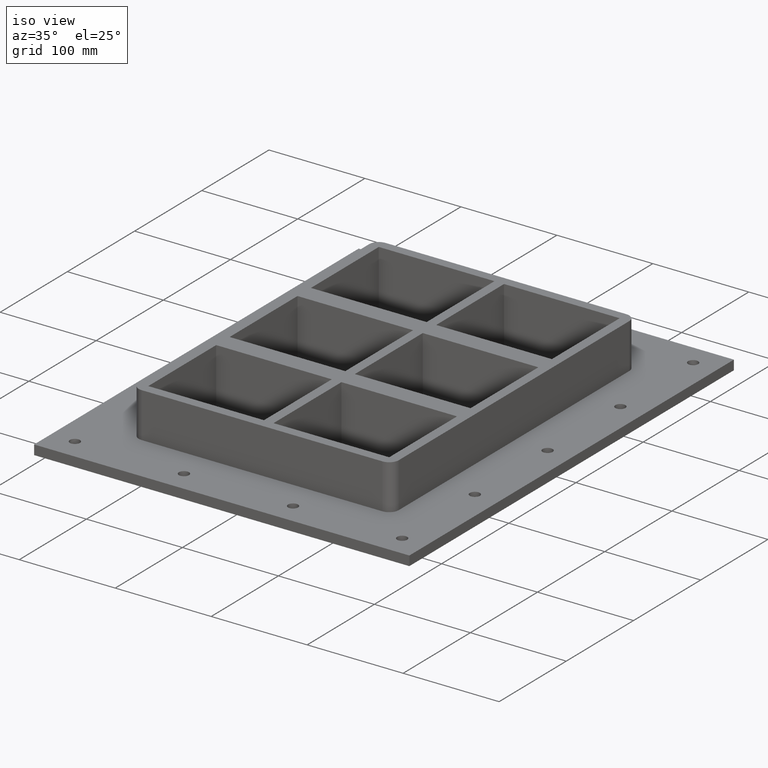
[diagram: clean part render]
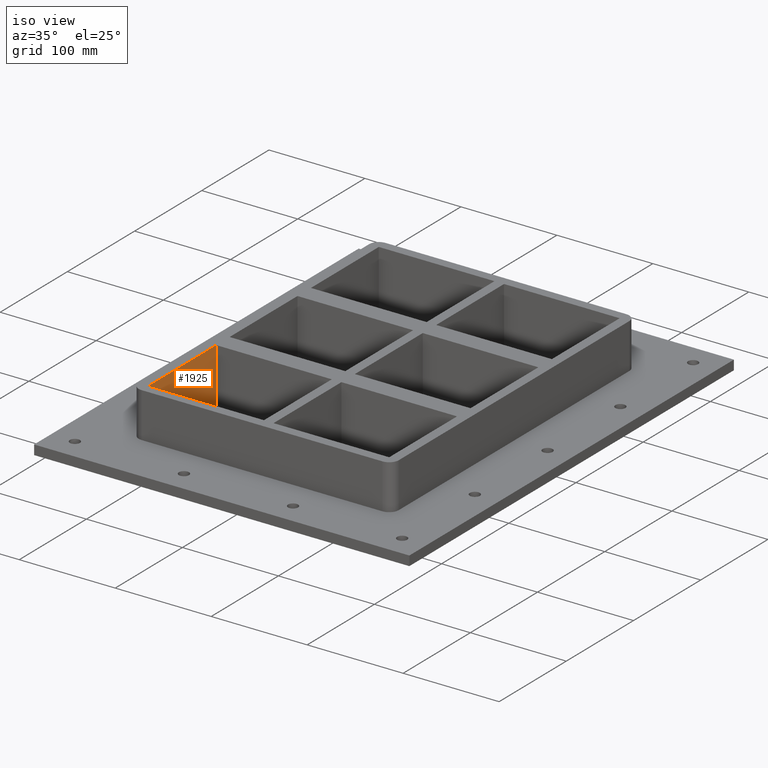
[diagram: same view with one face highlighted and labeled with its STEP entity id]
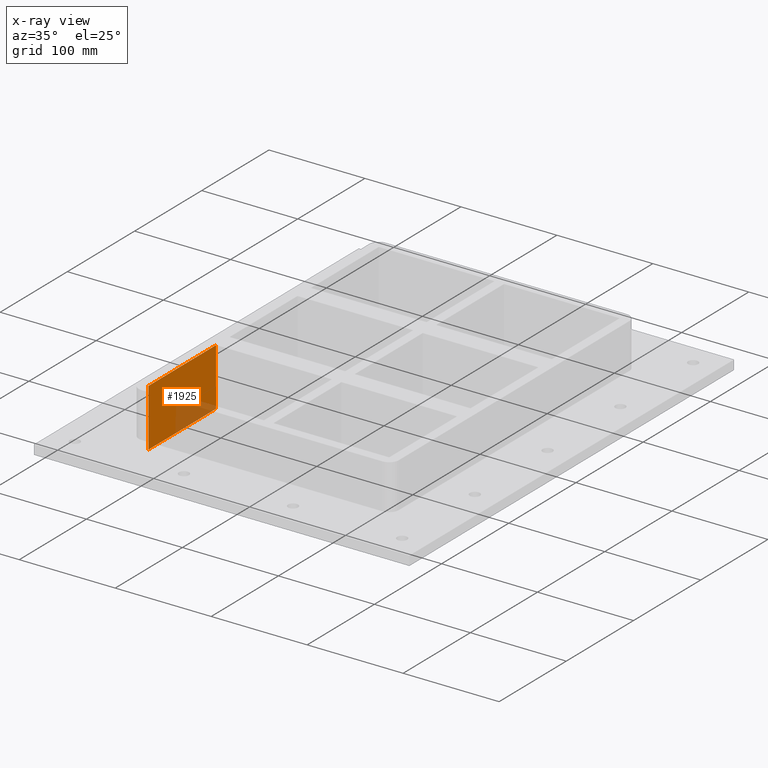
[diagram: x-ray of the same camera — body ghosted, the highlighted face saturated]
A machine part, iso view. The second image highlights one B-rep face of the part: STEP entity #1925.
The next image is the same camera in x-ray: the body ghosted, the highlighted face saturated — about 19% of this face is hidden behind the body in this view.
In plain terms, the highlighted planar face has unit normal (-1, 0, 0).
Its self-contained STEP definition (entity closure, byte-faithful):
#1282=CARTESIAN_POINT('',(-125.49999999999997,-70.500000000000057,-30.0));
#1283=VERTEX_POINT('',#1282);
#1290=CARTESIAN_POINT('',(-125.49999999999996,-171.49999999999977,-30.0));
#1291=VERTEX_POINT('',#1290);
#1292=CARTESIAN_POINT('',(-125.49999999999997,-70.500000000000057,-30.0));
#1293=DIRECTION('',(0.0,-1.0,0.0));
#1294=VECTOR('',#1293,100.99999999999972);
#1295=LINE('',#1292,#1294);
#1296=EDGE_CURVE('',#1283,#1291,#1295,.T.);
#1895=CARTESIAN_POINT('',(-125.49999999999996,-171.49999999999977,30.0));
#1896=DIRECTION('',(-1.0,0.0,0.0));
#1897=DIRECTION('',(0.0,1.0,0.0));
#1898=AXIS2_PLACEMENT_3D('',#1895,#1896,#1897);
#1899=PLANE('',#1898);
#1900=ORIENTED_EDGE('',*,*,#1296,.F.);
#1901=CARTESIAN_POINT('',(-125.49999999999997,-70.500000000000057,30.0));
#1902=VERTEX_POINT('',#1901);
#1903=CARTESIAN_POINT('',(-125.49999999999997,-70.500000000000057,30.0));
#1904=DIRECTION('',(0.0,0.0,-1.0));
#1905=VECTOR('',#1904,60.0);
#1906=LINE('',#1903,#1905);
#1907=EDGE_CURVE('',#1902,#1283,#1906,.T.);
#1908=ORIENTED_EDGE('',*,*,#1907,.F.);
#1909=CARTESIAN_POINT('',(-125.49999999999996,-171.49999999999977,30.0));
#1910=VERTEX_POINT('',#1909);
#1911=CARTESIAN_POINT('',(-125.49999999999996,-171.49999999999977,30.0));
#1912=DIRECTION('',(0.0,1.0,0.0));
#1913=VECTOR('',#1912,100.99999999999972);
#1914=LINE('',#1911,#1913);
#1915=EDGE_CURVE('',#1910,#1902,#1914,.T.);
#1916=ORIENTED_EDGE('',*,*,#1915,.F.);
#1917=CARTESIAN_POINT('',(-125.49999999999996,-171.49999999999977,30.0));
#1918=DIRECTION('',(0.0,0.0,-1.0));
#1919=VECTOR('',#1918,60.0);
#1920=LINE('',#1917,#1919);
#1921=EDGE_CURVE('',#1910,#1291,#1920,.T.);
#1922=ORIENTED_EDGE('',*,*,#1921,.T.);
#1923=EDGE_LOOP('',(#1900,#1908,#1916,#1922));
#1924=FACE_OUTER_BOUND('',#1923,.T.);
#1925=ADVANCED_FACE('',(#1924),#1899,.F.);